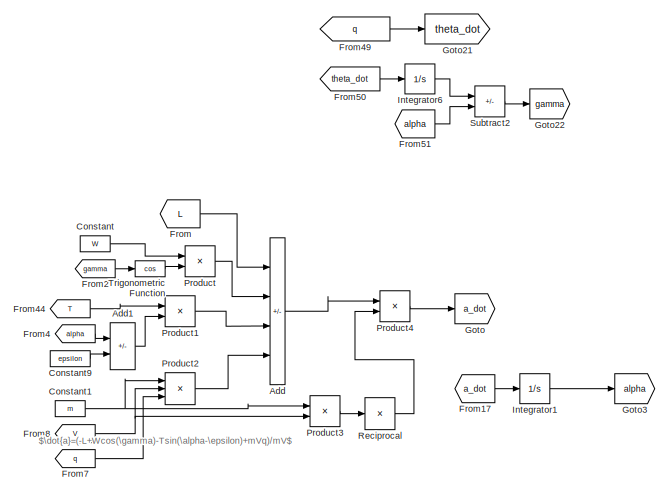
[diagram: root canvas - part 1/5, top left region]
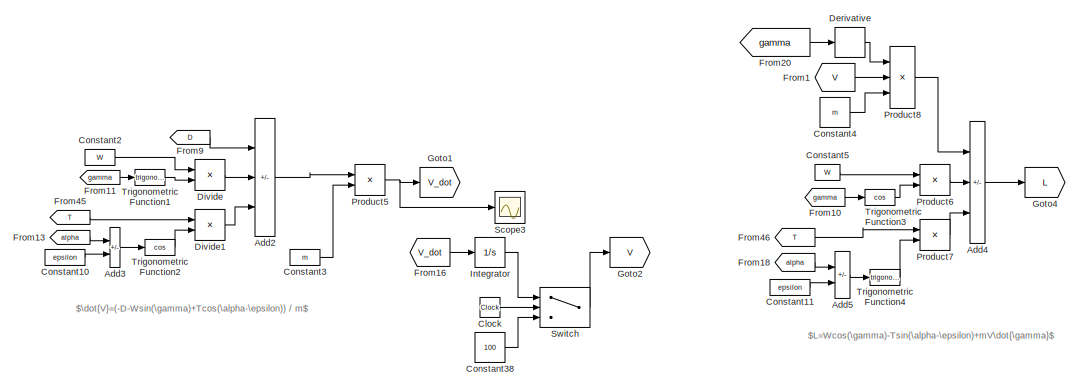
[diagram: root canvas - part 2/5, top center region]
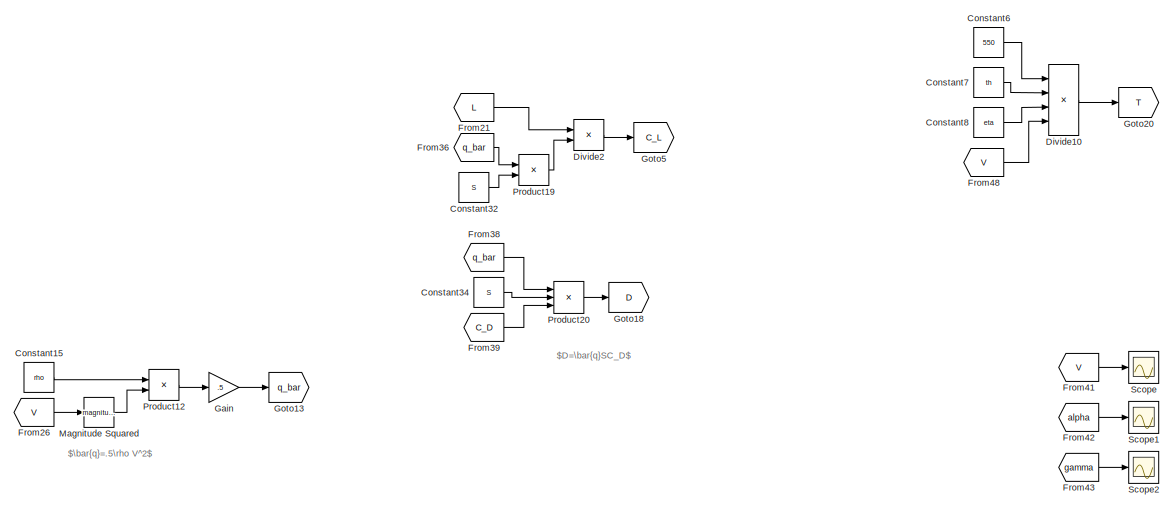
[diagram: root canvas - part 3/5, middle right region]
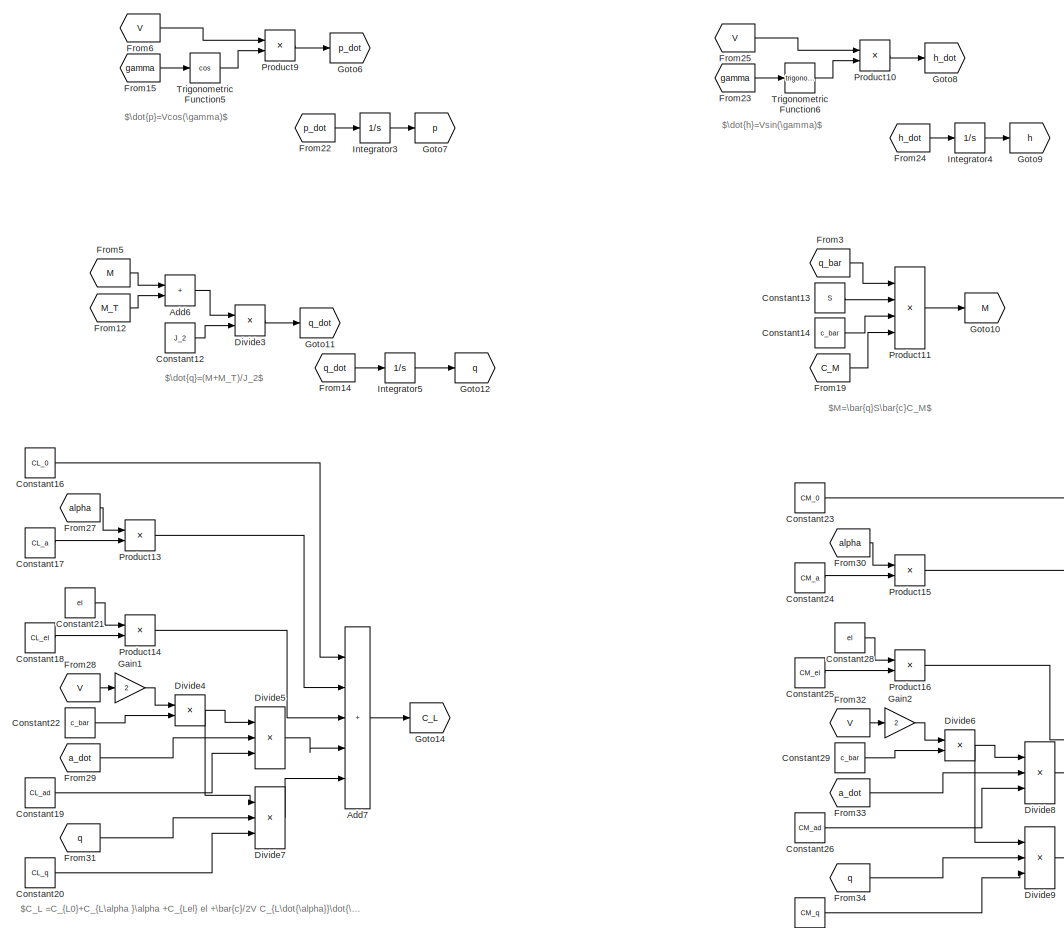
[diagram: root canvas - part 4/5, middle left region]
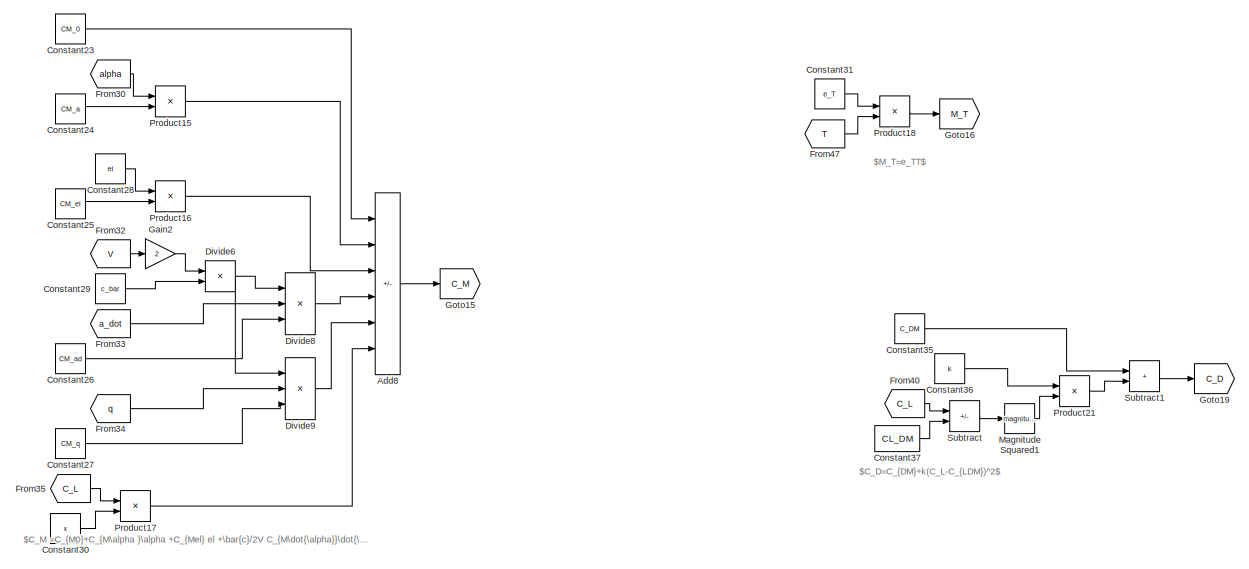
[diagram: root canvas - part 5/5, bottom center region]
MODEL slx_18bdcb8b70d6
KIND model
CONFIG AbsTol = auto
CONFIG EnableMultiTasking = off
CONFIG FixedStep = auto
CONFIG MaxStep = auto
CONFIG MinStep = auto
CONFIG RelTol = 1e-3
CONFIG SampleTimeConstraint = Unconstrained
CONFIG SolverName = VariableStepAuto
CONFIG StartTime = 0.0
CONFIG StopTime = 10.0
BLOCK [Sum] Add
  IconShape = rectangular
  Inputs = -+-+
  Ports = [4, 1]
BLOCK [Sum] Add1
  IconShape = rectangular
  Inputs = +-
  Ports = [2, 1]
BLOCK [Sum] Add2
  IconShape = rectangular
  Inputs = --+
  Ports = [3, 1]
BLOCK [Sum] Add3
  IconShape = rectangular
  Inputs = +-
  Ports = [2, 1]
BLOCK [Sum] Add4
  IconShape = rectangular
  Inputs = ++-
  Ports = [3, 1]
BLOCK [Sum] Add5
  IconShape = rectangular
  Inputs = +-
  Ports = [2, 1]
BLOCK [Sum] Add6
  IconShape = rectangular
  Ports = [2, 1]
BLOCK [Sum] Add7
  IconShape = rectangular
  Inputs = +++++
  Ports = [5, 1]
BLOCK [Sum] Add8
  IconShape = rectangular
  Inputs = +++++-
  Ports = [6, 1]
BLOCK [Clock] Clock
BLOCK [Constant] Constant
  Value = W
BLOCK [Constant] Constant1
  Value = m
BLOCK [Constant] Constant10
  Value = epsilon
BLOCK [Constant] Constant11
  Value = epsilon
BLOCK [Constant] Constant12
  Value = J_2
BLOCK [Constant] Constant13
  Value = S
BLOCK [Constant] Constant14
  Value = c_bar
BLOCK [Constant] Constant15
  Value = rho
BLOCK [Constant] Constant16
  Value = CL_0
BLOCK [Constant] Constant17
  Value = CL_a
BLOCK [Constant] Constant18
  Value = CL_el
BLOCK [Constant] Constant19
  Value = CL_ad
BLOCK [Constant] Constant2
  Value = W
BLOCK [Constant] Constant20
  Value = CL_q
BLOCK [Constant] Constant21
  Value = el
BLOCK [Constant] Constant22
  Value = c_bar
BLOCK [Constant] Constant23
  Value = CM_0
BLOCK [Constant] Constant24
  Value = CM_a
BLOCK [Constant] Constant25
  Value = CM_el
BLOCK [Constant] Constant26
  Value = CM_ad
BLOCK [Constant] Constant27
  Value = CM_q
BLOCK [Constant] Constant28
  Value = el
BLOCK [Constant] Constant29
  Value = c_bar
BLOCK [Constant] Constant3
  Value = m
BLOCK [Constant] Constant30
  Value = x
BLOCK [Constant] Constant31
  Value = e_T
BLOCK [Constant] Constant32
  Value = S
BLOCK [Constant] Constant34
  Value = S
BLOCK [Constant] Constant35
  Value = C_DM
BLOCK [Constant] Constant36
  Value = k
BLOCK [Constant] Constant37
  Value = CL_DM
BLOCK [Constant] Constant38
  Value = 100
BLOCK [Constant] Constant4
  Value = m
BLOCK [Constant] Constant5
  Value = W
BLOCK [Constant] Constant6
  Value = 550
BLOCK [Constant] Constant7
  Value = th
BLOCK [Constant] Constant8
  Value = eta
BLOCK [Constant] Constant9
  Value = epsilon
BLOCK [Derivative] Derivative
BLOCK [Product] Divide
  Ports = [2, 1]
BLOCK [Product] Divide1
  Ports = [2, 1]
BLOCK [Product] Divide10
  Inputs = ***/
  Ports = [4, 1]
BLOCK [Product] Divide2
  Inputs = */
  Ports = [2, 1]
BLOCK [Product] Divide3
  Inputs = */
  Ports = [2, 1]
BLOCK [Product] Divide4
  Inputs = /*
  Ports = [2, 1]
BLOCK [Product] Divide5
  Inputs = ***
  Ports = [3, 1]
BLOCK [Product] Divide6
  Inputs = /*
  Ports = [2, 1]
BLOCK [Product] Divide7
  Inputs = ***
  Ports = [3, 1]
BLOCK [Product] Divide8
  Inputs = ***
  Ports = [3, 1]
BLOCK [Product] Divide9
  Inputs = ***
  Ports = [3, 1]
BLOCK [From] From
  GotoTag = L
BLOCK [From] From1
  GotoTag = V
BLOCK [From] From10
  GotoTag = gamma
BLOCK [From] From11
  GotoTag = gamma
BLOCK [From] From12
  GotoTag = M_T
BLOCK [From] From13
  GotoTag = alpha
BLOCK [From] From14
  GotoTag = q_dot
BLOCK [From] From15
  GotoTag = gamma
BLOCK [From] From16
  GotoTag = V_dot
BLOCK [From] From17
  GotoTag = a_dot
BLOCK [From] From18
  GotoTag = alpha
BLOCK [From] From19
  GotoTag = C_M
BLOCK [From] From2
  GotoTag = gamma
BLOCK [From] From20
  GotoTag = gamma
BLOCK [From] From21
  GotoTag = L
BLOCK [From] From22
  GotoTag = p_dot
BLOCK [From] From23
  GotoTag = gamma
BLOCK [From] From24
  GotoTag = h_dot
BLOCK [From] From25
  GotoTag = V
BLOCK [From] From26
  GotoTag = V
BLOCK [From] From27
  GotoTag = alpha
BLOCK [From] From28
  GotoTag = V
BLOCK [From] From29
  GotoTag = a_dot
BLOCK [From] From3
  GotoTag = q_bar
BLOCK [From] From30
  GotoTag = alpha
BLOCK [From] From31
  GotoTag = q
BLOCK [From] From32
  GotoTag = V
BLOCK [From] From33
  GotoTag = a_dot
BLOCK [From] From34
  GotoTag = q
BLOCK [From] From35
  GotoTag = C_L
BLOCK [From] From36
  GotoTag = q_bar
BLOCK [From] From38
  GotoTag = q_bar
BLOCK [From] From39
  GotoTag = C_D
BLOCK [From] From4
  GotoTag = alpha
BLOCK [From] From40
  GotoTag = C_L
BLOCK [From] From41
  GotoTag = V
BLOCK [From] From42
  GotoTag = alpha
BLOCK [From] From43
  GotoTag = gamma
BLOCK [From] From44
  GotoTag = T
BLOCK [From] From45
  GotoTag = T
BLOCK [From] From46
  GotoTag = T
BLOCK [From] From47
  GotoTag = T
BLOCK [From] From48
  GotoTag = V
BLOCK [From] From49
  GotoTag = q
BLOCK [From] From5
  GotoTag = M
BLOCK [From] From50
  GotoTag = theta_dot
BLOCK [From] From51
  GotoTag = alpha
BLOCK [From] From6
  GotoTag = V
BLOCK [From] From7
  GotoTag = q
BLOCK [From] From8
  GotoTag = V
BLOCK [From] From9
  GotoTag = D
BLOCK [Gain] Gain
  Gain = .5
BLOCK [Gain] Gain1
  Gain = 2
BLOCK [Gain] Gain2
  Gain = 2
BLOCK [Goto] Goto
  GotoTag = a_dot
BLOCK [Goto] Goto1
  GotoTag = V_dot
BLOCK [Goto] Goto10
  GotoTag = M
BLOCK [Goto] Goto11
  GotoTag = q_dot
BLOCK [Goto] Goto12
  GotoTag = q
BLOCK [Goto] Goto13
  GotoTag = q_bar
BLOCK [Goto] Goto14
  GotoTag = C_L
BLOCK [Goto] Goto15
  GotoTag = C_M
BLOCK [Goto] Goto16
  GotoTag = M_T
BLOCK [Goto] Goto18
  GotoTag = D
BLOCK [Goto] Goto19
  GotoTag = C_D
BLOCK [Goto] Goto2
  GotoTag = V
BLOCK [Goto] Goto20
  GotoTag = T
BLOCK [Goto] Goto21
  GotoTag = theta_dot
BLOCK [Goto] Goto22
  GotoTag = gamma
BLOCK [Goto] Goto3
  GotoTag = alpha
BLOCK [Goto] Goto4
  GotoTag = L
BLOCK [Goto] Goto5
  GotoTag = C_L
BLOCK [Goto] Goto6
  GotoTag = p_dot
BLOCK [Goto] Goto7
  GotoTag = p
BLOCK [Goto] Goto8
  GotoTag = h_dot
BLOCK [Goto] Goto9
  GotoTag = h
BLOCK [Integrator] Integrator
  Ports = [1, 1]
BLOCK [Integrator] Integrator1
  Ports = [1, 1]
BLOCK [Integrator] Integrator3
  Ports = [1, 1]
BLOCK [Integrator] Integrator4
  Ports = [1, 1]
BLOCK [Integrator] Integrator5
  Ports = [1, 1]
BLOCK [Integrator] Integrator6
  Ports = [1, 1]
BLOCK [Math] Magnitude Squared
  Operator = magnitude^2
  Ports = [1, 1]
BLOCK [Math] Magnitude Squared1
  Operator = magnitude^2
  Ports = [1, 1]
BLOCK [Product] Product
  Ports = [2, 1]
BLOCK [Product] Product1
  Ports = [2, 1]
BLOCK [Product] Product10
  Ports = [2, 1]
BLOCK [Product] Product11
  Inputs = 4
  Ports = [4, 1]
BLOCK [Product] Product12
  Ports = [2, 1]
BLOCK [Product] Product13
  Ports = [2, 1]
BLOCK [Product] Product14
  Ports = [2, 1]
BLOCK [Product] Product15
  Ports = [2, 1]
BLOCK [Product] Product16
  Ports = [2, 1]
BLOCK [Product] Product17
  Ports = [2, 1]
BLOCK [Product] Product18
  Ports = [2, 1]
BLOCK [Product] Product19
  Ports = [2, 1]
BLOCK [Product] Product2
  Inputs = 3
  Ports = [3, 1]
BLOCK [Product] Product20
  Inputs = 3
  Ports = [3, 1]
BLOCK [Product] Product21
  Ports = [2, 1]
BLOCK [Product] Product3
  Ports = [2, 1]
BLOCK [Product] Product4
  Ports = [2, 1]
BLOCK [Product] Product5
  Inputs = */
  Ports = [2, 1]
BLOCK [Product] Product6
  Ports = [2, 1]
BLOCK [Product] Product7
  Ports = [2, 1]
BLOCK [Product] Product8
  Inputs = 3
  Ports = [3, 1]
BLOCK [Product] Product9
  Ports = [2, 1]
BLOCK [Product] Reciprocal
  Inputs = /
  Ports = [1, 1]
BLOCK [Scope] Scope
  Floating = off
  NumInputPorts = 1
  Ports = [1]
  ScopeSpecificationString = Simulink.scopes.TimeScopeBlockCfg('CurrentConfiguration', extmgr.ConfigurationSet(extmgr.Configuration('Core','General UI',true),extmgr.Configuration('Core','Source UI',true),extmgr.Configuration('Sources','WiredSimulink',true),extmgr.Configuration('Visuals','Time Domain',true,'SerializedDisplays',{struct('MinYLimReal','-12.5','MaxYLimReal','112.5','YLabelReal','','MinYLimMag','0.00000','MaxYLimMa...<+1331ch>
BLOCK [Scope] Scope1
  Floating = off
  NumInputPorts = 1
  Ports = [1]
  ScopeSpecificationString = Simulink.scopes.TimeScopeBlockCfg('CurrentConfiguration', extmgr.ConfigurationSet(extmgr.Configuration('Core','General UI',true),extmgr.Configuration('Core','Source UI',true),extmgr.Configuration('Sources','WiredSimulink',true,'DataLoggingVariableName','ScopeData1'),extmgr.Configuration('Visuals','Time Domain',true,'SerializedDisplays',{struct('MinYLimReal','-1745448011426607104.00000','MaxYLimRea...<+1516ch>
BLOCK [Scope] Scope2
  Floating = off
  NumInputPorts = 1
  Ports = [1]
  ScopeSpecificationString = Simulink.scopes.TimeScopeBlockCfg('CurrentConfiguration', extmgr.ConfigurationSet(extmgr.Configuration('Core','General UI',true),extmgr.Configuration('Core','Source UI',true),extmgr.Configuration('Sources','WiredSimulink',true,'DataLoggingVariableName','ScopeData2'),extmgr.Configuration('Visuals','Time Domain',true,'SerializedDisplays',{struct('MinYLimReal','-61.5943','MaxYLimReal','6.84869','YLab...<+1368ch>
BLOCK [Scope] Scope3
  Floating = off
  NumInputPorts = 1
  Ports = [1]
  ScopeSpecificationString = Simulink.scopes.TimeScopeBlockCfg('CurrentConfiguration', extmgr.ConfigurationSet(extmgr.Configuration('Core','General UI',true),extmgr.Configuration('Core','Source UI',true),extmgr.Configuration('Sources','WiredSimulink',true,'DataLoggingVariableName','ScopeData1'),extmgr.Configuration('Visuals','Time Domain',true,'SerializedDisplays',{struct('MinYLimReal','-42277909413463783900600864083603200513...<+1913ch>
BLOCK [Sum] Subtract
  IconShape = rectangular
  Inputs = +-
  Ports = [2, 1]
BLOCK [Sum] Subtract1
  IconShape = rectangular
  Ports = [2, 1]
BLOCK [Sum] Subtract2
  IconShape = rectangular
  Inputs = +-
  Ports = [2, 1]
BLOCK [Switch] Switch
  Criteria = u2 > Threshold
  InputSameDT = off
  SaturateOnIntegerOverflow = off
BLOCK [Trigonometry] Trigonometric Function
  Operator = cos
  Ports = [1, 1]
BLOCK [Trigonometry] Trigonometric Function1
  Ports = [1, 1]
BLOCK [Trigonometry] Trigonometric Function2
  Operator = cos
  Ports = [1, 1]
BLOCK [Trigonometry] Trigonometric Function3
  Operator = cos
  Ports = [1, 1]
BLOCK [Trigonometry] Trigonometric Function4
  Ports = [1, 1]
BLOCK [Trigonometry] Trigonometric Function5
  Operator = cos
  Ports = [1, 1]
BLOCK [Trigonometry] Trigonometric Function6
  Ports = [1, 1]
ANNOTATION (root): $C_D=C_{DM}+k(C_L-C_{LDM})^2$
ANNOTATION (root): $C_L =C_{L0}+C_{L\alpha }\alpha +C_{Lel} el +\bar{c}/2V C_{L\dot{\alpha}}\dot{\alpha}+\bar{c}/2VC_{Lq}q$
ANNOTATION (root): $C_M =C_{M0}+C_{M\alpha }\alpha +C_{Mel} el +\bar{c}/2V C_{M\dot{\alpha}}\dot{\alpha}+\bar{c}/2VC_{Mq}q-C_L *x/c$
ANNOTATION (root): $D=\bar{q}SC_D$
ANNOTATION (root): $L=Wcos(\gamma)-Tsin(\alpha-\epsilon)+mV\dot{\gamma}$
ANNOTATION (root): $M=\bar{q}S\bar{c}C_M$
ANNOTATION (root): $M_T=e_TT$
ANNOTATION (root): $\bar{q}=.5\rho V^2$
ANNOTATION (root): $\dot{V}=(-D-Wsin(\gamma)+Tcos(\alpha-\epsilon)) / m$
ANNOTATION (root): $\dot{a}=(-L+Wcos(\gamma)-Tsin(\alpha-\epsilon)+mVq)/mV$
ANNOTATION (root): $\dot{h}=Vsin(\gamma)$
ANNOTATION (root): $\dot{p}=Vcos(\gamma)$
ANNOTATION (root): $\dot{q}=(M+M_T)/J_2$
LINE Add1:1 -> Product1:2
LINE Add2:1 -> Product5:1
LINE Add3:1 -> Trigonometric Function2:1
LINE Add4:1 -> Goto4:1
LINE Add5:1 -> Trigonometric Function4:1
LINE Add6:1 -> Divide3:1
LINE Add7:1 -> Goto14:1
LINE Add8:1 -> Goto15:1
LINE Add:1 -> Product4:1
LINE Clock:1 -> Switch:2
LINE Constant10:1 -> Add3:2
LINE Constant11:1 -> Add5:2
LINE Constant12:1 -> Divide3:2
LINE Constant13:1 -> Product11:2
LINE Constant14:1 -> Product11:3
LINE Constant15:1 -> Product12:1
LINE Constant16:1 -> Add7:1
LINE Constant17:1 -> Product13:2
LINE Constant18:1 -> Product14:2
LINE Constant19:1 -> Divide5:3
NET Constant1:1 -> Product2:1, Product3:1
LINE Constant20:1 -> Divide7:3
LINE Constant21:1 -> Product14:1
LINE Constant22:1 -> Divide4:2
LINE Constant23:1 -> Add8:1
LINE Constant24:1 -> Product15:2
LINE Constant25:1 -> Product16:2
LINE Constant26:1 -> Divide8:3
LINE Constant27:1 -> Divide9:3
LINE Constant28:1 -> Product16:1
LINE Constant29:1 -> Divide6:2
LINE Constant2:1 -> Divide:1
LINE Constant30:1 -> Product17:2
LINE Constant31:1 -> Product18:1
LINE Constant32:1 -> Product19:2
LINE Constant34:1 -> Product20:2
LINE Constant35:1 -> Subtract1:1
LINE Constant36:1 -> Product21:1
LINE Constant37:1 -> Subtract:2
LINE Constant38:1 -> Switch:3
LINE Constant3:1 -> Product5:2
LINE Constant4:1 -> Product8:3
LINE Constant5:1 -> Product6:1
LINE Constant6:1 -> Divide10:1
LINE Constant7:1 -> Divide10:2
LINE Constant8:1 -> Divide10:3
LINE Constant9:1 -> Add1:2
LINE Constant:1 -> Product:1
LINE Derivative:1 -> Product8:1
LINE Divide10:1 -> Goto20:1
LINE Divide1:1 -> Add2:3
LINE Divide2:1 -> Goto5:1
LINE Divide3:1 -> Goto11:1
NET Divide4:1 -> Divide5:1, Divide7:1
LINE Divide5:1 -> Add7:4
NET Divide6:1 -> Divide8:1, Divide9:1
LINE Divide7:1 -> Add7:5
LINE Divide8:1 -> Add8:4
LINE Divide9:1 -> Add8:5
LINE Divide:1 -> Add2:2
LINE From10:1 -> Trigonometric Function3:1
LINE From11:1 -> Trigonometric Function1:1
LINE From12:1 -> Add6:2
LINE From13:1 -> Add3:1
LINE From14:1 -> Integrator5:1
LINE From15:1 -> Trigonometric Function5:1
LINE From16:1 -> Integrator:1
LINE From17:1 -> Integrator1:1
LINE From18:1 -> Add5:1
LINE From19:1 -> Product11:4
LINE From1:1 -> Product8:2
LINE From20:1 -> Derivative:1
LINE From21:1 -> Divide2:1
LINE From22:1 -> Integrator3:1
LINE From23:1 -> Trigonometric Function6:1
LINE From24:1 -> Integrator4:1
LINE From25:1 -> Product10:1
LINE From26:1 -> Magnitude Squared:1
LINE From27:1 -> Product13:1
LINE From28:1 -> Gain1:1
LINE From29:1 -> Divide5:2
LINE From2:1 -> Trigonometric Function:1
LINE From30:1 -> Product15:1
LINE From31:1 -> Divide7:2
LINE From32:1 -> Gain2:1
LINE From33:1 -> Divide8:2
LINE From34:1 -> Divide9:2
LINE From35:1 -> Product17:1
LINE From36:1 -> Product19:1
LINE From38:1 -> Product20:1
LINE From39:1 -> Product20:3
LINE From3:1 -> Product11:1
LINE From40:1 -> Subtract:1
LINE From41:1 -> Scope:1
LINE From42:1 -> Scope1:1
LINE From43:1 -> Scope2:1
LINE From44:1 -> Product1:1
LINE From45:1 -> Divide1:1
LINE From46:1 -> Product7:1
LINE From47:1 -> Product18:2
LINE From48:1 -> Divide10:4
LINE From49:1 -> Goto21:1
LINE From4:1 -> Add1:1
LINE From50:1 -> Integrator6:1
LINE From51:1 -> Subtract2:2
LINE From5:1 -> Add6:1
LINE From6:1 -> Product9:1
LINE From7:1 -> Product2:3
NET From8:1 -> Product2:2, Product3:2
LINE From9:1 -> Add2:1
LINE From:1 -> Add:1
LINE Gain1:1 -> Divide4:1
LINE Gain2:1 -> Divide6:1
LINE Gain:1 -> Goto13:1
LINE Integrator1:1 -> Goto3:1
LINE Integrator3:1 -> Goto7:1
LINE Integrator4:1 -> Goto9:1
LINE Integrator5:1 -> Goto12:1
LINE Integrator6:1 -> Subtract2:1
LINE Integrator:1 -> Switch:1
LINE Magnitude Squared1:1 -> Product21:2
LINE Magnitude Squared:1 -> Product12:2
LINE Product10:1 -> Goto8:1
LINE Product11:1 -> Goto10:1
LINE Product12:1 -> Gain:1
LINE Product13:1 -> Add7:2
LINE Product14:1 -> Add7:3
LINE Product15:1 -> Add8:2
LINE Product16:1 -> Add8:3
LINE Product17:1 -> Add8:6
LINE Product18:1 -> Goto16:1
LINE Product19:1 -> Divide2:2
LINE Product1:1 -> Add:3
LINE Product20:1 -> Goto18:1
LINE Product21:1 -> Subtract1:2
LINE Product2:1 -> Add:4
LINE Product3:1 -> Reciprocal:1
LINE Product4:1 -> Goto:1
NET Product5:1 -> Goto1:1, Scope3:1
LINE Product6:1 -> Add4:2
LINE Product7:1 -> Add4:3
LINE Product8:1 -> Add4:1
LINE Product9:1 -> Goto6:1
LINE Product:1 -> Add:2
LINE Reciprocal:1 -> Product4:2
LINE Subtract1:1 -> Goto19:1
LINE Subtract2:1 -> Goto22:1
LINE Subtract:1 -> Magnitude Squared1:1
LINE Switch:1 -> Goto2:1
LINE Trigonometric Function1:1 -> Divide:2
LINE Trigonometric Function2:1 -> Divide1:2
LINE Trigonometric Function3:1 -> Product6:2
LINE Trigonometric Function4:1 -> Product7:2
LINE Trigonometric Function5:1 -> Product9:2
LINE Trigonometric Function6:1 -> Product10:2
LINE Trigonometric Function:1 -> Product:2
note: NET lines group one-source signal fan-out (src -> all destinations, sorted); 1:1 wires keep LINE
